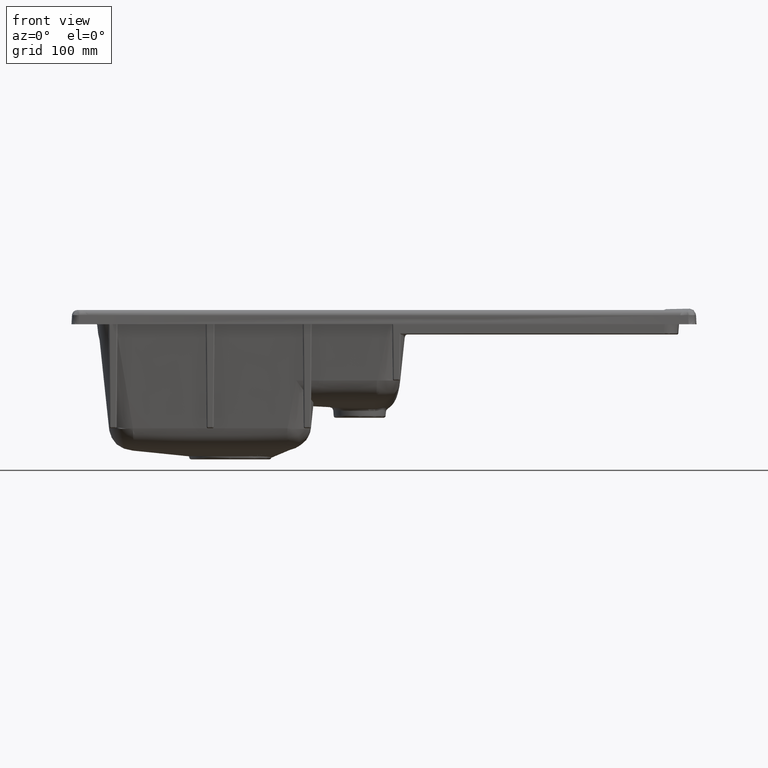
[diagram: clean part render]
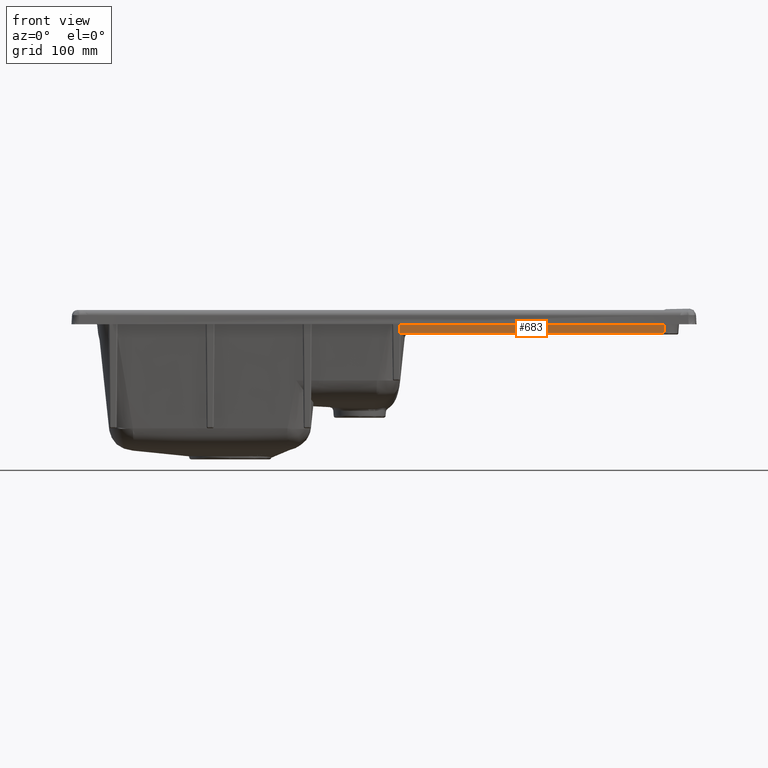
[diagram: same view with one face highlighted and labeled with its STEP entity id]
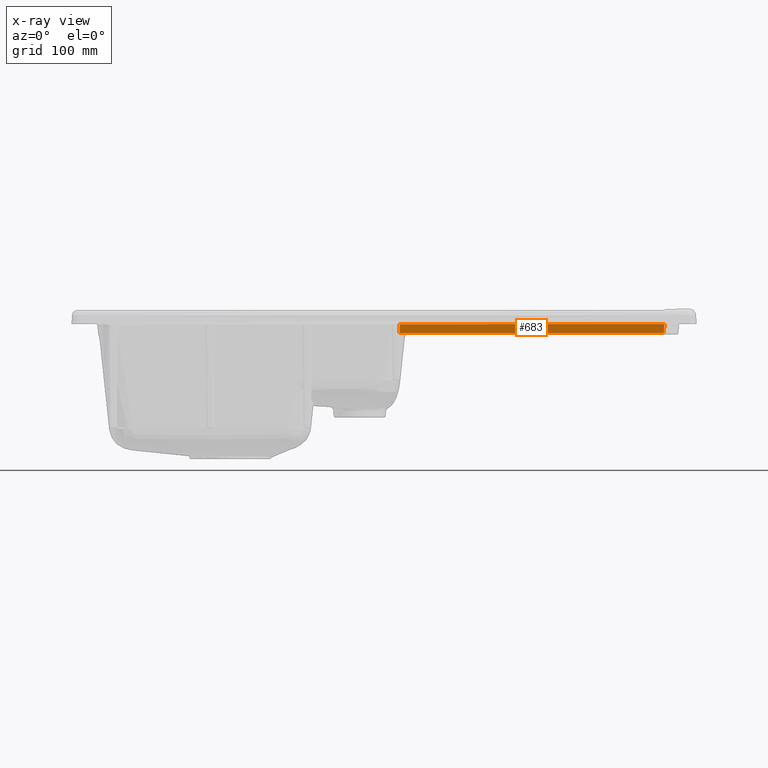
[diagram: x-ray of the same camera — body ghosted, the highlighted face saturated]
A machine part, front view. The second image highlights one B-rep face of the part: STEP entity #683.
The next image is the same camera in x-ray: the body ghosted, the highlighted face saturated — about 0% of this face is hidden behind the body in this view.
In plain terms, the highlighted face is a freeform B-spline surface patch.
Its self-contained STEP definition (entity closure, byte-faithful):
#212=(
BOUNDED_SURFACE()
B_SPLINE_SURFACE(3,1,((#19833,#19834),(#19835,#19836),(#19837,#19838),(#19839,
#19840),(#19841,#19842)),.UNSPECIFIED.,.F.,.F.,.F.)
B_SPLINE_SURFACE_WITH_KNOTS((4,1,4),(2,2),(0.,0.246505707474714,1.),(0.,
1.),.UNSPECIFIED.)
GEOMETRIC_REPRESENTATION_ITEM()
RATIONAL_B_SPLINE_SURFACE(((1.0000019959574,1.0000019959574),(1.00000118739561,
1.00000118739561),(0.999997173832095,0.999997173832096),(0.999995351663296,
0.999995351663296),(0.999995222841849,0.999995222841849)))
REPRESENTATION_ITEM('')
SURFACE()
);
#683=ADVANCED_FACE('',(#1137),#212,.T.);
#1137=FACE_OUTER_BOUND('',#1462,.T.);
#1462=EDGE_LOOP('',(#2672,#2673,#2674,#2675));
#2672=ORIENTED_EDGE('',*,*,#4187,.T.);
#2673=ORIENTED_EDGE('',*,*,#4188,.F.);
#2674=ORIENTED_EDGE('',*,*,#4185,.F.);
#2675=ORIENTED_EDGE('',*,*,#4115,.F.);
#3377=VERTEX_POINT('',#15816);
#3436=VERTEX_POINT('',#18453);
#3474=VERTEX_POINT('',#19775);
#3475=VERTEX_POINT('',#19828);
#4115=EDGE_CURVE('',#3436,#3377,#4728,.T.);
#4185=EDGE_CURVE('',#3377,#3474,#4788,.T.);
#4187=EDGE_CURVE('',#3436,#3475,#4790,.T.);
#4188=EDGE_CURVE('',#3474,#3475,#4791,.T.);
#4728=B_SPLINE_CURVE_WITH_KNOTS('',3,(#18454,#18455,#18456,#18457,#18458,
#18459,#18460),.UNSPECIFIED.,.F.,.F.,(4,3,4),(0.,0.126907809582018,1.),
 .UNSPECIFIED.);
#4788=B_SPLINE_CURVE_WITH_KNOTS('',3,(#19771,#19772,#19773,#19774),
 .UNSPECIFIED.,.F.,.F.,(4,4),(0.,1.),.UNSPECIFIED.);
#4790=B_SPLINE_CURVE_WITH_KNOTS('',3,(#19800,#19801,#19802,#19803,#19804,
#19805,#19806,#19807,#19808,#19809,#19810,#19811,#19812,#19813,#19814,#19815,
#19816,#19817,#19818,#19819,#19820,#19821,#19822,#19823,#19824,#19825,#19826,
#19827),.UNSPECIFIED.,.F.,.F.,(4,2,1,1,1,1,2,2,2,2,2,1,1,1,1,2,2,4),(0.,
0.124999999999967,0.187499999999951,0.218749999999943,0.234374999999939,
0.242187499999937,0.244140624999937,0.246093749999936,0.249999999999936,
0.374999999999939,0.437499999999941,0.468749999999942,0.484374999999942,
0.492187499999943,0.496093749999943,0.498046874999943,0.499999999999943,
1.),.UNSPECIFIED.);
#4791=B_SPLINE_CURVE_WITH_KNOTS('',3,(#19829,#19830,#19831,#19832),
 .UNSPECIFIED.,.F.,.F.,(4,4),(0.,1.),.UNSPECIFIED.);
#15816=CARTESIAN_POINT('',(367.245085237027,-192.888261948094,-34.0251320797687));
#18453=CARTESIAN_POINT('',(368.249069408262,-193.057412130547,-20.879839516986));
#18454=CARTESIAN_POINT('',(368.246794723423,-193.057402959426,-20.8798496784986));
#18455=CARTESIAN_POINT('',(368.20441982237,-193.050247650954,-21.4359293425371));
#18456=CARTESIAN_POINT('',(368.162044919045,-193.043092368295,-21.9920090067346));
#18457=CARTESIAN_POINT('',(368.119670013452,-193.035937111446,-22.5480886710914));
#18458=CARTESIAN_POINT('',(367.82814186191,-192.986710835335,-26.3737697997719));
#18459=CARTESIAN_POINT('',(367.536613602954,-192.937485780885,-30.1994509359868));
#18460=CARTESIAN_POINT('',(367.245085237027,-192.888261948094,-34.0251320797687));
#19771=CARTESIAN_POINT('',(367.245085237027,-192.888261948094,-34.0251320797687));
#19772=CARTESIAN_POINT('',(238.148801280528,-192.380782024828,-34.0251320797687));
#19773=CARTESIAN_POINT('',(109.05157791707,-192.112650195416,-34.0251320797687));
#19774=CARTESIAN_POINT('',(-20.0457664060787,-192.083868527532,-34.0251320797687));
#19775=CARTESIAN_POINT('',(-20.0457666737115,-192.083868527472,-34.0251320797687));
#19800=CARTESIAN_POINT('',(368.246792983946,-193.057402665841,-20.8798724944028));
#19801=CARTESIAN_POINT('',(354.804592566594,-193.004729798953,-20.8561851081666));
#19802=CARTESIAN_POINT('',(339.946221259628,-192.948955681923,-20.839415636866));
#19803=CARTESIAN_POINT('',(315.534395675307,-192.86336237748,-20.8246383023187));
#19804=CARTESIAN_POINT('',(302.79741573234,-192.820090793951,-20.8198438531459));
#19805=CARTESIAN_POINT('',(287.00823578285,-192.76945666099,-20.8187902107875));
#19806=CARTESIAN_POINT('',(278.88130301738,-192.744193385328,-20.8193983600274));
#19807=CARTESIAN_POINT('',(275.054147482107,-192.732487273196,-20.8199441903076));
#19808=CARTESIAN_POINT('',(273.573520871282,-192.727989527659,-20.8201963486326));
#19809=CARTESIAN_POINT('',(272.980578729892,-192.726190815522,-20.8203005898507));
#19810=CARTESIAN_POINT('',(272.637631578177,-192.725152317439,-20.8203632527519));
#19811=CARTESIAN_POINT('',(272.243645009561,-192.72396000237,-20.8204364567377));
#19812=CARTESIAN_POINT('',(271.977260706017,-192.723154815663,-20.8204877718661));
#19813=CARTESIAN_POINT('',(263.06360116928,-192.696246247356,-20.8222640826528));
#19814=CARTESIAN_POINT('',(250.604023404727,-192.659474318898,-20.8265593363302));
#19815=CARTESIAN_POINT('',(226.190588634598,-192.594443776684,-20.8368613725818));
#19816=CARTESIAN_POINT('',(217.098765576486,-192.571160700446,-20.8409385772882));
#19817=CARTESIAN_POINT('',(202.030010217963,-192.534947848247,-20.8480191732818));
#19818=CARTESIAN_POINT('',(194.137877344751,-192.516523038924,-20.851800668512));
#19819=CARTESIAN_POINT('',(184.304316647534,-192.494754329573,-20.8566345081058));
#19820=CARTESIAN_POINT('',(179.231018123454,-192.483840105311,-20.8591569516924));
#19821=CARTESIAN_POINT('',(176.655239306719,-192.478380406891,-20.8604445544331));
#19822=CARTESIAN_POINT('',(175.542949193832,-192.476040513314,-20.8610020372393));
#19823=CARTESIAN_POINT('',(174.799559139401,-192.474480638722,-20.861374948679));
#19824=CARTESIAN_POINT('',(174.391970009828,-192.473627891007,-20.8615796662562));
#19825=CARTESIAN_POINT('',(100.395211042832,-192.319114145588,-20.8987405558995));
#19826=CARTESIAN_POINT('',(35.7433977651657,-192.261040801583,-20.9249402442547));
#19827=CARTESIAN_POINT('',(-19.8511394419677,-192.248349316157,-20.940323326223));
#19828=CARTESIAN_POINT('',(-19.8511394636281,-192.248351861682,-20.9403247918157));
#19829=CARTESIAN_POINT('',(-20.0457664060787,-192.083868527532,-34.0251320797688));
#19830=CARTESIAN_POINT('',(-19.9808906555849,-192.13869539123,-29.6635295913863));
#19831=CARTESIAN_POINT('',(-19.9160150072692,-192.193522315373,-25.3019271030038));
#19832=CARTESIAN_POINT('',(-19.8511394611317,-192.248349299961,-20.9403246146213));
#19833=CARTESIAN_POINT('',(513.160950135286,-193.811548080983,-13.5862508958435));
#19834=CARTESIAN_POINT('',(513.164144604483,-193.211999111672,-61.2950035580503));
#19835=CARTESIAN_POINT('',(469.152075383943,-193.586163471088,-13.5862508958435));
#19836=CARTESIAN_POINT('',(469.15501722621,-192.986613207988,-61.2950035580503));
#19837=CARTESIAN_POINT('',(290.619994728232,-192.747765580101,-13.5862508958435));
#19838=CARTESIAN_POINT('',(290.621911731498,-192.148210504292,-61.2950035580504));
#19839=CARTESIAN_POINT('',(112.086140379165,-192.367128425672,-13.5862508958435));
#19840=CARTESIAN_POINT('',(112.087032533249,-191.767571164868,-61.2950035580504));
#19841=CARTESIAN_POINT('',(-22.4385557194643,-192.340218556118,-13.5862508958435));
#19842=CARTESIAN_POINT('',(-22.4384357860075,-191.740661140841,-61.2950035580504));